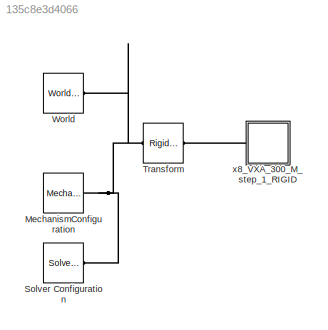
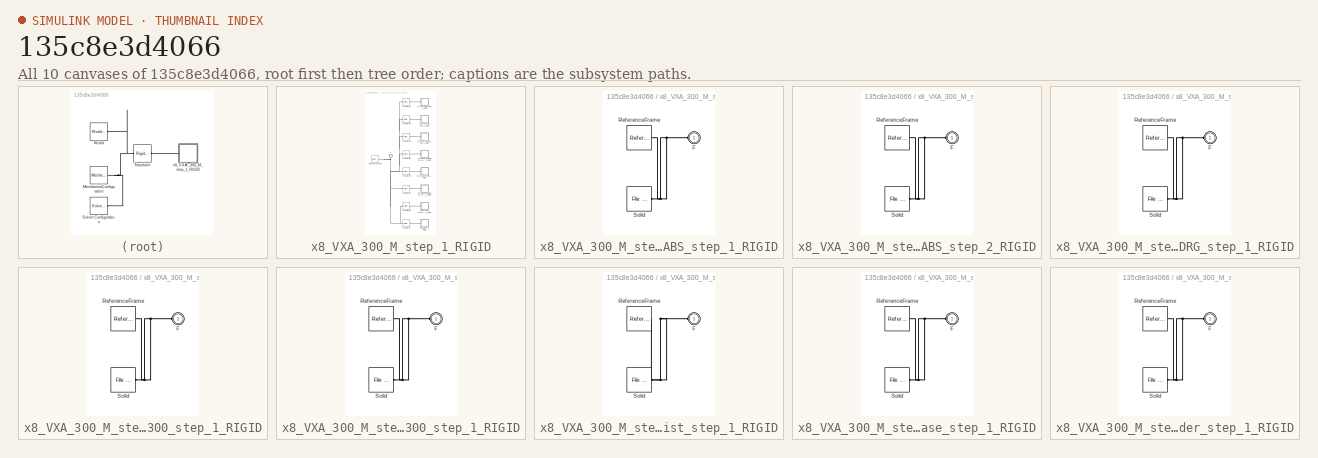
[diagram: thumbnail index - all 10 canvases of the model, root first then tree order]
MODEL slx_135c8e3d4066
KIND model
CONFIG AbsTol = auto
CONFIG EnableMultiTasking = off
CONFIG FixedStep = auto
CONFIG MaxStep = auto
CONFIG MinStep = auto
CONFIG RelTol = 1e-3
CONFIG SampleTimeConstraint = Unconstrained
CONFIG SolverName = VariableStepAuto
CONFIG StartTime = 0.0
CONFIG StopTime = 10.0
WORKSPACE source: external: MATLAB File  (data not in archive)
BLOCK [Reference] MechanismConfiguration  REF=sm_lib/Utilities/Mechanism
Configuration
  Ports = [0, 0, 0, 0, 0, 0, 1]
  SourceBlock = sm_lib/Utilities/Mechanism\nConfiguration
  SourceProductBaseCode = MS
  SourceType = Mechanism\nConfiguration
BLOCK [Reference] Solver Configuration  REF=nesl_utility/Solver
Configuration
  Ports = [0, 0, 0, 0, 0, 0, 1]
  SourceBlock = nesl_utility/Solver\nConfiguration
  SourceProductBaseCode = SS,PW,VE
  SourceType = Solver\nConfiguration
BLOCK [Reference] Transform  REF=sm_lib/Frames and
Transforms/Rigid
Transform
  Ports = [0, 0, 0, 0, 0, 1, 1]
  SourceBlock = sm_lib/Frames and\nTransforms/Rigid\nTransform
  SourceProductBaseCode = MS
  SourceType = Rigid\nTransform
BLOCK [Reference] World  REF=sm_lib/Frames and
Transforms/World Frame
  Ports = [0, 0, 0, 0, 0, 0, 1]
  SourceBlock = sm_lib/Frames and\nTransforms/World Frame
  SourceProductBaseCode = MS
  SourceType = World Frame
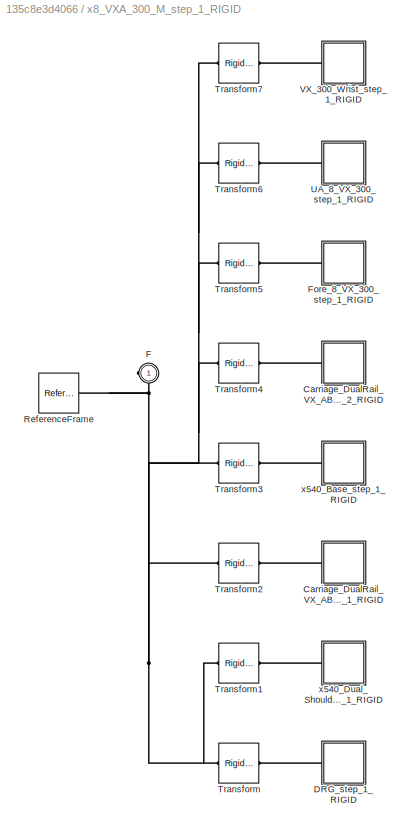
BLOCK [SubSystem] x8_VXA_300_M_step_1_RIGID
  Ports = [0, 0, 0, 0, 0, 1]
  RequestExecContextInheritance = off
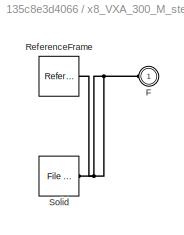
BLOCK [SubSystem] x8_VXA_300_M_step_1_RIGID/Carriage_DualRail_VX_ABS_step_1_RIGID
  Ports = [0, 0, 0, 0, 0, 1]
  RequestExecContextInheritance = off
BLOCK [PMIOPort] x8_VXA_300_M_step_1_RIGID/Carriage_DualRail_VX_ABS_step_1_RIGID/F
  Side = Left
BLOCK [Reference] x8_VXA_300_M_step_1_RIGID/Carriage_DualRail_VX_ABS_step_1_RIGID/ReferenceFrame  REF=sm_lib/Frames and
Transforms/Reference
Frame
  Ports = [0, 0, 0, 0, 0, 0, 1]
  SourceBlock = sm_lib/Frames and\nTransforms/Reference\nFrame
  SourceProductBaseCode = MS
  SourceType = Reference\nFrame
BLOCK [Reference] x8_VXA_300_M_step_1_RIGID/Carriage_DualRail_VX_ABS_step_1_RIGID/Solid  REF=sm_lib/Body Elements/File Solid
  Ports = [0, 0, 0, 0, 0, 0, 1]
  SourceBlock = sm_lib/Body Elements/File Solid
  SourceProductBaseCode = MS
  SourceType = File Solid
BLOCK [SubSystem] x8_VXA_300_M_step_1_RIGID/Carriage_DualRail_VX_ABS_step_2_RIGID
  Ports = [0, 0, 0, 0, 0, 1]
  RequestExecContextInheritance = off
BLOCK [PMIOPort] x8_VXA_300_M_step_1_RIGID/Carriage_DualRail_VX_ABS_step_2_RIGID/F
  Side = Left
BLOCK [Reference] x8_VXA_300_M_step_1_RIGID/Carriage_DualRail_VX_ABS_step_2_RIGID/ReferenceFrame  REF=sm_lib/Frames and
Transforms/Reference
Frame
  Ports = [0, 0, 0, 0, 0, 0, 1]
  SourceBlock = sm_lib/Frames and\nTransforms/Reference\nFrame
  SourceProductBaseCode = MS
  SourceType = Reference\nFrame
BLOCK [Reference] x8_VXA_300_M_step_1_RIGID/Carriage_DualRail_VX_ABS_step_2_RIGID/Solid  REF=sm_lib/Body Elements/File Solid
  Ports = [0, 0, 0, 0, 0, 0, 1]
  SourceBlock = sm_lib/Body Elements/File Solid
  SourceProductBaseCode = MS
  SourceType = File Solid
BLOCK [SubSystem] x8_VXA_300_M_step_1_RIGID/DRG_step_1_RIGID
  Ports = [0, 0, 0, 0, 0, 1]
  RequestExecContextInheritance = off
BLOCK [PMIOPort] x8_VXA_300_M_step_1_RIGID/DRG_step_1_RIGID/F
  Side = Left
BLOCK [Reference] x8_VXA_300_M_step_1_RIGID/DRG_step_1_RIGID/ReferenceFrame  REF=sm_lib/Frames and
Transforms/Reference
Frame
  Ports = [0, 0, 0, 0, 0, 0, 1]
  SourceBlock = sm_lib/Frames and\nTransforms/Reference\nFrame
  SourceProductBaseCode = MS
  SourceType = Reference\nFrame
BLOCK [Reference] x8_VXA_300_M_step_1_RIGID/DRG_step_1_RIGID/Solid  REF=sm_lib/Body Elements/File Solid
  Ports = [0, 0, 0, 0, 0, 0, 1]
  SourceBlock = sm_lib/Body Elements/File Solid
  SourceProductBaseCode = MS
  SourceType = File Solid
BLOCK [PMIOPort] x8_VXA_300_M_step_1_RIGID/F
  Side = Left
BLOCK [SubSystem] x8_VXA_300_M_step_1_RIGID/Fore_8_VX_300_step_1_RIGID
  Ports = [0, 0, 0, 0, 0, 1]
  RequestExecContextInheritance = off
BLOCK [PMIOPort] x8_VXA_300_M_step_1_RIGID/Fore_8_VX_300_step_1_RIGID/F
  Side = Left
BLOCK [Reference] x8_VXA_300_M_step_1_RIGID/Fore_8_VX_300_step_1_RIGID/ReferenceFrame  REF=sm_lib/Frames and
Transforms/Reference
Frame
  Ports = [0, 0, 0, 0, 0, 0, 1]
  SourceBlock = sm_lib/Frames and\nTransforms/Reference\nFrame
  SourceProductBaseCode = MS
  SourceType = Reference\nFrame
BLOCK [Reference] x8_VXA_300_M_step_1_RIGID/Fore_8_VX_300_step_1_RIGID/Solid  REF=sm_lib/Body Elements/File Solid
  Ports = [0, 0, 0, 0, 0, 0, 1]
  SourceBlock = sm_lib/Body Elements/File Solid
  SourceProductBaseCode = MS
  SourceType = File Solid
BLOCK [Reference] x8_VXA_300_M_step_1_RIGID/ReferenceFrame  REF=sm_lib/Frames and
Transforms/Reference
Frame
  Ports = [0, 0, 0, 0, 0, 0, 1]
  SourceBlock = sm_lib/Frames and\nTransforms/Reference\nFrame
  SourceProductBaseCode = MS
  SourceType = Reference\nFrame
BLOCK [Reference] x8_VXA_300_M_step_1_RIGID/Transform  REF=sm_lib/Frames and
Transforms/Rigid
Transform
  Ports = [0, 0, 0, 0, 0, 1, 1]
  SourceBlock = sm_lib/Frames and\nTransforms/Rigid\nTransform
  SourceProductBaseCode = MS
  SourceType = Rigid\nTransform
BLOCK [Reference] x8_VXA_300_M_step_1_RIGID/Transform1  REF=sm_lib/Frames and
Transforms/Rigid
Transform
  Ports = [0, 0, 0, 0, 0, 1, 1]
  SourceBlock = sm_lib/Frames and\nTransforms/Rigid\nTransform
  SourceProductBaseCode = MS
  SourceType = Rigid\nTransform
BLOCK [Reference] x8_VXA_300_M_step_1_RIGID/Transform2  REF=sm_lib/Frames and
Transforms/Rigid
Transform
  Ports = [0, 0, 0, 0, 0, 1, 1]
  SourceBlock = sm_lib/Frames and\nTransforms/Rigid\nTransform
  SourceProductBaseCode = MS
  SourceType = Rigid\nTransform
BLOCK [Reference] x8_VXA_300_M_step_1_RIGID/Transform3  REF=sm_lib/Frames and
Transforms/Rigid
Transform
  Ports = [0, 0, 0, 0, 0, 1, 1]
  SourceBlock = sm_lib/Frames and\nTransforms/Rigid\nTransform
  SourceProductBaseCode = MS
  SourceType = Rigid\nTransform
BLOCK [Reference] x8_VXA_300_M_step_1_RIGID/Transform4  REF=sm_lib/Frames and
Transforms/Rigid
Transform
  Ports = [0, 0, 0, 0, 0, 1, 1]
  SourceBlock = sm_lib/Frames and\nTransforms/Rigid\nTransform
  SourceProductBaseCode = MS
  SourceType = Rigid\nTransform
BLOCK [Reference] x8_VXA_300_M_step_1_RIGID/Transform5  REF=sm_lib/Frames and
Transforms/Rigid
Transform
  Ports = [0, 0, 0, 0, 0, 1, 1]
  SourceBlock = sm_lib/Frames and\nTransforms/Rigid\nTransform
  SourceProductBaseCode = MS
  SourceType = Rigid\nTransform
BLOCK [Reference] x8_VXA_300_M_step_1_RIGID/Transform6  REF=sm_lib/Frames and
Transforms/Rigid
Transform
  Ports = [0, 0, 0, 0, 0, 1, 1]
  SourceBlock = sm_lib/Frames and\nTransforms/Rigid\nTransform
  SourceProductBaseCode = MS
  SourceType = Rigid\nTransform
BLOCK [Reference] x8_VXA_300_M_step_1_RIGID/Transform7  REF=sm_lib/Frames and
Transforms/Rigid
Transform
  Ports = [0, 0, 0, 0, 0, 1, 1]
  SourceBlock = sm_lib/Frames and\nTransforms/Rigid\nTransform
  SourceProductBaseCode = MS
  SourceType = Rigid\nTransform
BLOCK [SubSystem] x8_VXA_300_M_step_1_RIGID/UA_8_VX_300_step_1_RIGID
  Ports = [0, 0, 0, 0, 0, 1]
  RequestExecContextInheritance = off
BLOCK [PMIOPort] x8_VXA_300_M_step_1_RIGID/UA_8_VX_300_step_1_RIGID/F
  Side = Left
BLOCK [Reference] x8_VXA_300_M_step_1_RIGID/UA_8_VX_300_step_1_RIGID/ReferenceFrame  REF=sm_lib/Frames and
Transforms/Reference
Frame
  Ports = [0, 0, 0, 0, 0, 0, 1]
  SourceBlock = sm_lib/Frames and\nTransforms/Reference\nFrame
  SourceProductBaseCode = MS
  SourceType = Reference\nFrame
BLOCK [Reference] x8_VXA_300_M_step_1_RIGID/UA_8_VX_300_step_1_RIGID/Solid  REF=sm_lib/Body Elements/File Solid
  Ports = [0, 0, 0, 0, 0, 0, 1]
  SourceBlock = sm_lib/Body Elements/File Solid
  SourceProductBaseCode = MS
  SourceType = File Solid
BLOCK [SubSystem] x8_VXA_300_M_step_1_RIGID/VX_300_Wrist_step_1_RIGID
  Ports = [0, 0, 0, 0, 0, 1]
  RequestExecContextInheritance = off
BLOCK [PMIOPort] x8_VXA_300_M_step_1_RIGID/VX_300_Wrist_step_1_RIGID/F
  Side = Left
BLOCK [Reference] x8_VXA_300_M_step_1_RIGID/VX_300_Wrist_step_1_RIGID/ReferenceFrame  REF=sm_lib/Frames and
Transforms/Reference
Frame
  Ports = [0, 0, 0, 0, 0, 0, 1]
  SourceBlock = sm_lib/Frames and\nTransforms/Reference\nFrame
  SourceProductBaseCode = MS
  SourceType = Reference\nFrame
BLOCK [Reference] x8_VXA_300_M_step_1_RIGID/VX_300_Wrist_step_1_RIGID/Solid  REF=sm_lib/Body Elements/File Solid
  Ports = [0, 0, 0, 0, 0, 0, 1]
  SourceBlock = sm_lib/Body Elements/File Solid
  SourceProductBaseCode = MS
  SourceType = File Solid
BLOCK [SubSystem] x8_VXA_300_M_step_1_RIGID/x540_Base_step_1_RIGID
  Ports = [0, 0, 0, 0, 0, 1]
  RequestExecContextInheritance = off
BLOCK [PMIOPort] x8_VXA_300_M_step_1_RIGID/x540_Base_step_1_RIGID/F
  Side = Left
BLOCK [Reference] x8_VXA_300_M_step_1_RIGID/x540_Base_step_1_RIGID/ReferenceFrame  REF=sm_lib/Frames and
Transforms/Reference
Frame
  Ports = [0, 0, 0, 0, 0, 0, 1]
  SourceBlock = sm_lib/Frames and\nTransforms/Reference\nFrame
  SourceProductBaseCode = MS
  SourceType = Reference\nFrame
BLOCK [Reference] x8_VXA_300_M_step_1_RIGID/x540_Base_step_1_RIGID/Solid  REF=sm_lib/Body Elements/File Solid
  Ports = [0, 0, 0, 0, 0, 0, 1]
  SourceBlock = sm_lib/Body Elements/File Solid
  SourceProductBaseCode = MS
  SourceType = File Solid
BLOCK [SubSystem] x8_VXA_300_M_step_1_RIGID/x540_Dual_Shoulder_step_1_RIGID
  Ports = [0, 0, 0, 0, 0, 1]
  RequestExecContextInheritance = off
BLOCK [PMIOPort] x8_VXA_300_M_step_1_RIGID/x540_Dual_Shoulder_step_1_RIGID/F
  Side = Left
BLOCK [Reference] x8_VXA_300_M_step_1_RIGID/x540_Dual_Shoulder_step_1_RIGID/ReferenceFrame  REF=sm_lib/Frames and
Transforms/Reference
Frame
  Ports = [0, 0, 0, 0, 0, 0, 1]
  SourceBlock = sm_lib/Frames and\nTransforms/Reference\nFrame
  SourceProductBaseCode = MS
  SourceType = Reference\nFrame
BLOCK [Reference] x8_VXA_300_M_step_1_RIGID/x540_Dual_Shoulder_step_1_RIGID/Solid  REF=sm_lib/Body Elements/File Solid
  Ports = [0, 0, 0, 0, 0, 0, 1]
  SourceBlock = sm_lib/Body Elements/File Solid
  SourceProductBaseCode = MS
  SourceType = File Solid
PNET net1: MechanismConfiguration:RConn1 -- Solver Configuration:RConn1 -- Transform:LConn1 -- World:RConn1
PLINE Transform:RConn1 -- x8_VXA_300_M_step_1_RIGID:LConn1
PNET net2: x8_VXA_300_M_step_1_RIGID/Carriage_DualRail_VX_ABS_step_1_RIGID/F:RConn1 -- x8_VXA_300_M_step_1_RIGID/Carriage_DualRail_VX_ABS_step_1_RIGID/ReferenceFrame:RConn1 -- x8_VXA_300_M_step_1_RIGID/Carriage_DualRail_VX_ABS_step_1_RIGID/Solid:RConn1
PLINE x8_VXA_300_M_step_1_RIGID/Carriage_DualRail_VX_ABS_step_1_RIGID:LConn1 -- x8_VXA_300_M_step_1_RIGID/Transform2:RConn1
PNET net3: x8_VXA_300_M_step_1_RIGID/Carriage_DualRail_VX_ABS_step_2_RIGID/F:RConn1 -- x8_VXA_300_M_step_1_RIGID/Carriage_DualRail_VX_ABS_step_2_RIGID/ReferenceFrame:RConn1 -- x8_VXA_300_M_step_1_RIGID/Carriage_DualRail_VX_ABS_step_2_RIGID/Solid:RConn1
PLINE x8_VXA_300_M_step_1_RIGID/Carriage_DualRail_VX_ABS_step_2_RIGID:LConn1 -- x8_VXA_300_M_step_1_RIGID/Transform4:RConn1
PNET net4: x8_VXA_300_M_step_1_RIGID/DRG_step_1_RIGID/F:RConn1 -- x8_VXA_300_M_step_1_RIGID/DRG_step_1_RIGID/ReferenceFrame:RConn1 -- x8_VXA_300_M_step_1_RIGID/DRG_step_1_RIGID/Solid:RConn1
PLINE x8_VXA_300_M_step_1_RIGID/DRG_step_1_RIGID:LConn1 -- x8_VXA_300_M_step_1_RIGID/Transform:RConn1
PNET net5: x8_VXA_300_M_step_1_RIGID/F:RConn1 -- x8_VXA_300_M_step_1_RIGID/ReferenceFrame:RConn1 -- x8_VXA_300_M_step_1_RIGID/Transform1:LConn1 -- x8_VXA_300_M_step_1_RIGID/Transform2:LConn1 -- x8_VXA_300_M_step_1_RIGID/Transform3:LConn1 -- x8_VXA_300_M_step_1_RIGID/Transform4:LConn1 -- x8_VXA_300_M_step_1_RIGID/Transform5:LConn1 -- x8_VXA_300_M_step_1_RIGID/Transform6:LConn1 -- x8_VXA_300_M_step_1_RIGID/Transform7:LConn1 -- x8_VXA_300_M_step_1_RIGID/Transform:LConn1
PNET net6: x8_VXA_300_M_step_1_RIGID/Fore_8_VX_300_step_1_RIGID/F:RConn1 -- x8_VXA_300_M_step_1_RIGID/Fore_8_VX_300_step_1_RIGID/ReferenceFrame:RConn1 -- x8_VXA_300_M_step_1_RIGID/Fore_8_VX_300_step_1_RIGID/Solid:RConn1
PLINE x8_VXA_300_M_step_1_RIGID/Fore_8_VX_300_step_1_RIGID:LConn1 -- x8_VXA_300_M_step_1_RIGID/Transform5:RConn1
PLINE x8_VXA_300_M_step_1_RIGID/Transform1:RConn1 -- x8_VXA_300_M_step_1_RIGID/x540_Dual_Shoulder_step_1_RIGID:LConn1
PLINE x8_VXA_300_M_step_1_RIGID/Transform3:RConn1 -- x8_VXA_300_M_step_1_RIGID/x540_Base_step_1_RIGID:LConn1
PLINE x8_VXA_300_M_step_1_RIGID/Transform6:RConn1 -- x8_VXA_300_M_step_1_RIGID/UA_8_VX_300_step_1_RIGID:LConn1
PLINE x8_VXA_300_M_step_1_RIGID/Transform7:RConn1 -- x8_VXA_300_M_step_1_RIGID/VX_300_Wrist_step_1_RIGID:LConn1
PNET net7: x8_VXA_300_M_step_1_RIGID/UA_8_VX_300_step_1_RIGID/F:RConn1 -- x8_VXA_300_M_step_1_RIGID/UA_8_VX_300_step_1_RIGID/ReferenceFrame:RConn1 -- x8_VXA_300_M_step_1_RIGID/UA_8_VX_300_step_1_RIGID/Solid:RConn1
PNET net8: x8_VXA_300_M_step_1_RIGID/VX_300_Wrist_step_1_RIGID/F:RConn1 -- x8_VXA_300_M_step_1_RIGID/VX_300_Wrist_step_1_RIGID/ReferenceFrame:RConn1 -- x8_VXA_300_M_step_1_RIGID/VX_300_Wrist_step_1_RIGID/Solid:RConn1
PNET net9: x8_VXA_300_M_step_1_RIGID/x540_Base_step_1_RIGID/F:RConn1 -- x8_VXA_300_M_step_1_RIGID/x540_Base_step_1_RIGID/ReferenceFrame:RConn1 -- x8_VXA_300_M_step_1_RIGID/x540_Base_step_1_RIGID/Solid:RConn1
PNET net10: x8_VXA_300_M_step_1_RIGID/x540_Dual_Shoulder_step_1_RIGID/F:RConn1 -- x8_VXA_300_M_step_1_RIGID/x540_Dual_Shoulder_step_1_RIGID/ReferenceFrame:RConn1 -- x8_VXA_300_M_step_1_RIGID/x540_Dual_Shoulder_step_1_RIGID/Solid:RConn1
note: PNET lines group multi-terminal physical nets as a canonical sorted terminal list (undirected conserving connections); 2-terminal nets keep the pairwise PLINE form
